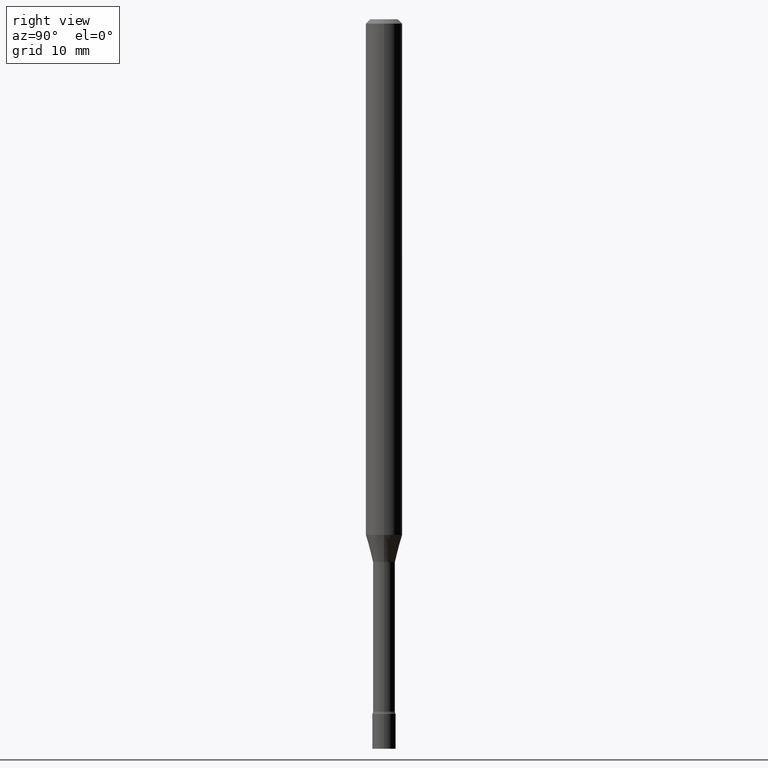
[diagram: clean part render]
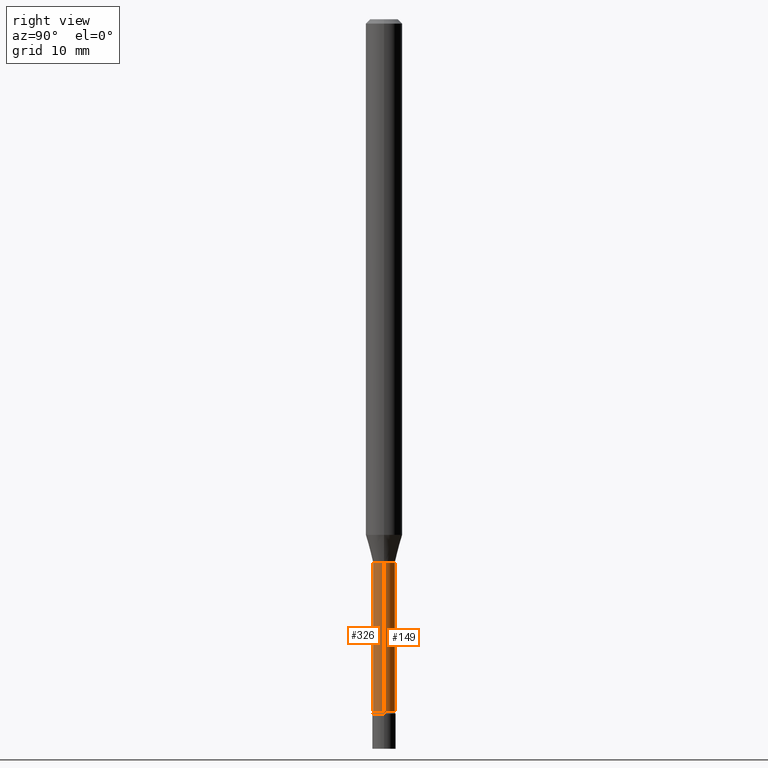
[diagram: same view with one multi-face feature highlighted, each face labeled with its STEP entity id]
A machine part, right view. The highlighted faces form ONE feature: a constant-radius fillet chain: 2 tangent blend faces with common blend radius 0.955 mm. The faces share edges in the B-rep.
Their STEP definitions:
[1] entity #326 (Cylinder):
#18 = EDGE_LOOP ( 'NONE', ( #503, #122, #153, #513 ) ) ;
#21 = DIRECTION ( 'NONE',  ( 1.000000000000000000, -6.982962677686259611E-15, 0.000000000000000000 ) ) ;
#54 = EDGE_CURVE ( 'NONE', #468, #110, #430, .T. ) ;
#84 = AXIS2_PLACEMENT_3D ( 'NONE', #125, #116, #280 ) ;
#103 = VERTEX_POINT ( 'NONE', #138 ) ;
#110 = VERTEX_POINT ( 'NONE', #485 ) ;
#116 = DIRECTION ( 'NONE',  ( -2.445468806185136597E-29, 3.491481338843145583E-15, 1.000000000000000000 ) ) ;
#122 = ORIENTED_EDGE ( 'NONE', *, *, #54, .T. ) ;
#125 = CARTESIAN_POINT ( 'NONE',  ( 0.000000000000000000, 0.000000000000000000, 0.000000000000000000 ) ) ;
#134 = CARTESIAN_POINT ( 'NONE',  ( 0.03760000000000006393, -2.625593966810040961E-16, 1.833442467699274916E-30 ) ) ;
#138 = CARTESIAN_POINT ( 'NONE',  ( 0.03760000000000000842, -6.763609620507332560E-15, -1.861974787463811065 ) ) ;
#145 = DIRECTION ( 'NONE',  ( -2.445468806185136597E-29, 3.491481338843145583E-15, 1.000000000000000000 ) ) ;
#153 = ORIENTED_EDGE ( 'NONE', *, *, #496, .T. ) ;
#193 = CARTESIAN_POINT ( 'NONE',  ( -0.03760000000000000842, -7.124015609348737090E-15, -1.861974787463811065 ) ) ;
#199 = EDGE_CURVE ( 'NONE', #446, #103, #236, .T. ) ;
#230 = FACE_OUTER_BOUND ( 'NONE', #18, .T. ) ;
#236 = CIRCLE ( 'NONE', #364, 0.03760000000000000842 ) ;
#239 = EDGE_CURVE ( 'NONE', #468, #446, #347, .T. ) ;
#243 = DIRECTION ( 'NONE',  ( -2.445468806185136877E-29, 3.491481338843145188E-15, 1.000000000000000000 ) ) ;
#246 = LINE ( 'NONE', #134, #402 ) ;
#255 = CARTESIAN_POINT ( 'NONE',  ( 5.800312587032242765E-29, -8.281309132162739301E-15, -2.371861204020250469 ) ) ;
#276 = CARTESIAN_POINT ( 'NONE',  ( -0.03760000000000011944, -8.019826777829792953E-15, -2.371861204020250469 ) ) ;
#280 = DIRECTION ( 'NONE',  ( 1.000000000000000000, -6.982962677686267499E-15, 4.876176775795935793E-29 ) ) ;
#326 = ADVANCED_FACE ( 'NONE', ( #230 ), #478, .T. ) ;
#347 = LINE ( 'NONE', #456, #405 ) ;
#364 = AXIS2_PLACEMENT_3D ( 'NONE', #454, #145, #21 ) ;
#402 = VECTOR ( 'NONE', #243, 39.37007874015748143 ) ;
#405 = VECTOR ( 'NONE', #502, 39.37007874015748143 ) ;
#430 = CIRCLE ( 'NONE', #508, 0.03760000000000011944 ) ;
#446 = VERTEX_POINT ( 'NONE', #193 ) ;
#454 = CARTESIAN_POINT ( 'NONE',  ( 4.553401260645949734E-29, -6.501050223826328957E-15, -1.861974787463811065 ) ) ;
#456 = CARTESIAN_POINT ( 'NONE',  ( -0.03760000000000006393, 2.671640686457981241E-16, -1.849519593935847729E-30 ) ) ;
#468 = VERTEX_POINT ( 'NONE', #276 ) ;
#478 = CYLINDRICAL_SURFACE ( 'NONE', #84, 0.03760000000000006393 ) ;
#485 = CARTESIAN_POINT ( 'NONE',  ( 0.03760000000000011944, -8.543868528843742905E-15, -2.371861204020250469 ) ) ;
#490 = DIRECTION ( 'NONE',  ( -2.445468806185136597E-29, 3.491481338843145583E-15, 1.000000000000000000 ) ) ;
#496 = EDGE_CURVE ( 'NONE', #110, #103, #246, .T. ) ;
#502 = DIRECTION ( 'NONE',  ( -2.445468806185136877E-29, 3.491481338843145188E-15, 1.000000000000000000 ) ) ;
#503 = ORIENTED_EDGE ( 'NONE', *, *, #239, .F. ) ;
#508 = AXIS2_PLACEMENT_3D ( 'NONE', #255, #490, #515 ) ;
#513 = ORIENTED_EDGE ( 'NONE', *, *, #199, .F. ) ;
#515 = DIRECTION ( 'NONE',  ( 1.000000000000000000, -6.982962677686263555E-15, 0.000000000000000000 ) ) ;
[2] entity #149 (Cylinder):
#6 = AXIS2_PLACEMENT_3D ( 'NONE', #158, #317, #481 ) ;
#50 = CIRCLE ( 'NONE', #6, 0.03760000000000011944 ) ;
#96 = AXIS2_PLACEMENT_3D ( 'NONE', #448, #223, #493 ) ;
#103 = VERTEX_POINT ( 'NONE', #138 ) ;
#110 = VERTEX_POINT ( 'NONE', #485 ) ;
#115 = ORIENTED_EDGE ( 'NONE', *, *, #426, .T. ) ;
#134 = CARTESIAN_POINT ( 'NONE',  ( 0.03760000000000006393, -2.625593966810040961E-16, 1.833442467699274916E-30 ) ) ;
#138 = CARTESIAN_POINT ( 'NONE',  ( 0.03760000000000000842, -6.763609620507332560E-15, -1.861974787463811065 ) ) ;
#149 = ADVANCED_FACE ( 'NONE', ( #290 ), #319, .T. ) ;
#157 = EDGE_CURVE ( 'NONE', #103, #446, #368, .T. ) ;
#158 = CARTESIAN_POINT ( 'NONE',  ( 5.800312587032242765E-29, -8.281309132162739301E-15, -2.371861204020250469 ) ) ;
#165 = AXIS2_PLACEMENT_3D ( 'NONE', #342, #381, #215 ) ;
#193 = CARTESIAN_POINT ( 'NONE',  ( -0.03760000000000000842, -7.124015609348737090E-15, -1.861974787463811065 ) ) ;
#215 = DIRECTION ( 'NONE',  ( 1.000000000000000000, -6.982962677686259611E-15, 0.000000000000000000 ) ) ;
#223 = DIRECTION ( 'NONE',  ( -2.445468806185136597E-29, 3.491481338843145583E-15, 1.000000000000000000 ) ) ;
#239 = EDGE_CURVE ( 'NONE', #468, #446, #347, .T. ) ;
#243 = DIRECTION ( 'NONE',  ( -2.445468806185136877E-29, 3.491481338843145188E-15, 1.000000000000000000 ) ) ;
#246 = LINE ( 'NONE', #134, #402 ) ;
#276 = CARTESIAN_POINT ( 'NONE',  ( -0.03760000000000011944, -8.019826777829792953E-15, -2.371861204020250469 ) ) ;
#290 = FACE_OUTER_BOUND ( 'NONE', #418, .T. ) ;
#317 = DIRECTION ( 'NONE',  ( -2.445468806185136597E-29, 3.491481338843145583E-15, 1.000000000000000000 ) ) ;
#319 = CYLINDRICAL_SURFACE ( 'NONE', #96, 0.03760000000000006393 ) ;
#342 = CARTESIAN_POINT ( 'NONE',  ( 4.553401260645949734E-29, -6.501050223826328957E-15, -1.861974787463811065 ) ) ;
#347 = LINE ( 'NONE', #456, #405 ) ;
#367 = ORIENTED_EDGE ( 'NONE', *, *, #496, .F. ) ;
#368 = CIRCLE ( 'NONE', #165, 0.03760000000000000842 ) ;
#381 = DIRECTION ( 'NONE',  ( -2.445468806185136597E-29, 3.491481338843145583E-15, 1.000000000000000000 ) ) ;
#402 = VECTOR ( 'NONE', #243, 39.37007874015748143 ) ;
#405 = VECTOR ( 'NONE', #502, 39.37007874015748143 ) ;
#411 = ORIENTED_EDGE ( 'NONE', *, *, #157, .F. ) ;
#418 = EDGE_LOOP ( 'NONE', ( #115, #471, #411, #367 ) ) ;
#426 = EDGE_CURVE ( 'NONE', #110, #468, #50, .T. ) ;
#446 = VERTEX_POINT ( 'NONE', #193 ) ;
#448 = CARTESIAN_POINT ( 'NONE',  ( 0.000000000000000000, 0.000000000000000000, 0.000000000000000000 ) ) ;
#456 = CARTESIAN_POINT ( 'NONE',  ( -0.03760000000000006393, 2.671640686457981241E-16, -1.849519593935847729E-30 ) ) ;
#468 = VERTEX_POINT ( 'NONE', #276 ) ;
#471 = ORIENTED_EDGE ( 'NONE', *, *, #239, .T. ) ;
#481 = DIRECTION ( 'NONE',  ( 1.000000000000000000, -6.982962677686263555E-15, 0.000000000000000000 ) ) ;
#485 = CARTESIAN_POINT ( 'NONE',  ( 0.03760000000000011944, -8.543868528843742905E-15, -2.371861204020250469 ) ) ;
#493 = DIRECTION ( 'NONE',  ( 1.000000000000000000, -6.982962677686267499E-15, 4.876176775795935793E-29 ) ) ;
#496 = EDGE_CURVE ( 'NONE', #110, #103, #246, .T. ) ;
#502 = DIRECTION ( 'NONE',  ( -2.445468806185136877E-29, 3.491481338843145188E-15, 1.000000000000000000 ) ) ;